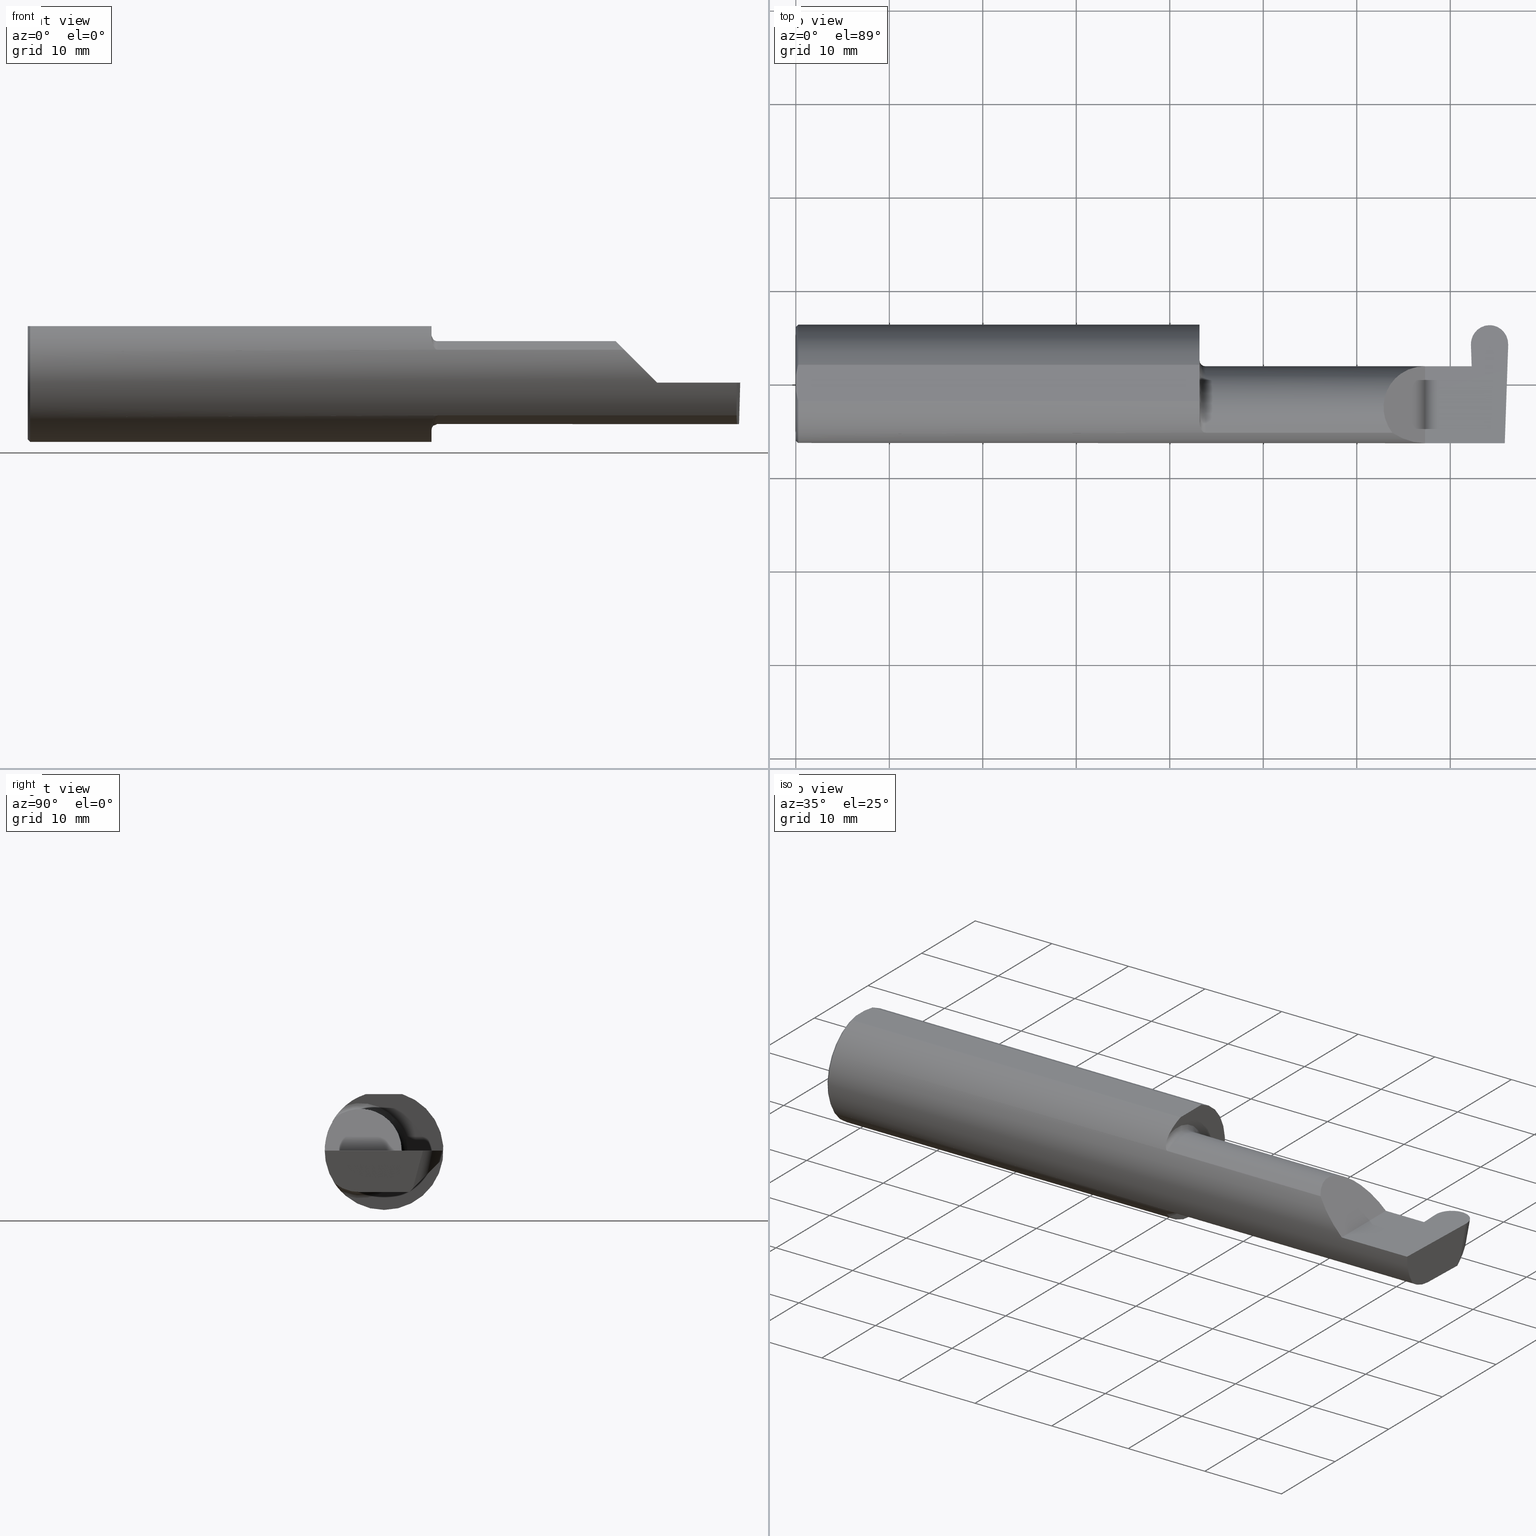
[diagram: canonical four-view strip — front | top / right | iso, engineering-drawing reading convention]
A machine part, canonical four-view strip (front | top / right | iso — engineering-drawing reading convention). The complete STEP part file that produces these views, byte-faithful:
ISO-10303-21;
HEADER;
FILE_DESCRIPTION (( 'STEP AP203' ),
    '1' );
FILE_NAME ('222494-GFR156-20.STEP',
    '2024-06-28T19:21:29',
    ( '' ),
    ( '' ),
    'SwSTEP 2.0',
    'SolidWorks 2024',
    '' );
FILE_SCHEMA (( 'CONFIG_CONTROL_DESIGN' ));
ENDSEC;

DATA;
#1 = ORIENTED_EDGE ( 'NONE', *, *, #38, .F. ) ;
#2 = DIRECTION ( 'NONE',  ( -1.000000000000000000, -0.000000000000000000, -0.000000000000000000 ) ) ;
#3 = CARTESIAN_POINT ( 'NONE',  ( 2.837280621926297819, 0.3091953186960626487, 0.02837098154789517018 ) ) ;
#4 = DIRECTION ( 'NONE',  ( 0.000000000000000000, -1.000000000000000000, 1.223176342469858124E-16 ) ) ;
#5 = ORIENTED_EDGE ( 'NONE', *, *, #217, .T. ) ;
#6 = CARTESIAN_POINT ( 'NONE',  ( 2.842784520300991158, 0.1657741035941333874, 0.000000000000000000 ) ) ;
#7 = CIRCLE ( 'NONE', #84, 0.1750000000000000167 ) ;
#8 = FACE_OUTER_BOUND ( 'NONE', #423, .T. ) ;
#9 = ORIENTED_EDGE ( 'NONE', *, *, #670, .F. ) ;
#10 = CARTESIAN_POINT ( 'NONE',  ( -0.002039370078740339320, 0.1058243371481696476, -0.1750000000000001277 ) ) ;
#11 = EDGE_CURVE ( 'NONE', #288, #451, #558, .T. ) ;
#12 = ORIENTED_EDGE ( 'NONE', *, *, #27, .T. ) ;
#13 = CARTESIAN_POINT ( 'NONE',  ( 2.650000000000000355, 0.07414999999999999369, 1.592040838891556877E-16 ) ) ;
#14 = EDGE_CURVE ( 'NONE', #132, #451, #323, .T. ) ;
#15 = VERTEX_POINT ( 'NONE', #523 ) ;
#16 = CARTESIAN_POINT ( 'NONE',  ( 1.700000000000000178, -0.1008500000000000646, 0.000000000000000000 ) ) ;
#17 = PERSON_AND_ORGANIZATION ( #489, #411 ) ;
#18 = ORIENTED_EDGE ( 'NONE', *, *, #309, .T. ) ;
#19 = CARTESIAN_POINT ( 'NONE',  ( 2.987584882537838826, -0.1008500000000000091, -0.1750000000000000722 ) ) ;
#20 = EDGE_CURVE ( 'NONE', #319, #421, #61, .T. ) ;
#21 = DIRECTION ( 'NONE',  ( 0.000000000000000000, -1.000000000000000000, 0.000000000000000000 ) ) ;
#22 = APPROVAL_ROLE ( '' ) ;
#23 = DIRECTION ( 'NONE',  ( -0.03489949670249601482, 0.9993908270190959842, -1.222058880457094148E-16 ) ) ;
#24 = VECTOR ( 'NONE', #73, 39.37007874015748854 ) ;
#25 = DIRECTION ( 'NONE',  ( 1.000000000000000000, 4.482410818444318395E-17, 0.000000000000000000 ) ) ;
#26 = EDGE_LOOP ( 'NONE', ( #128, #587, #563, #91 ) ) ;
#27 = EDGE_CURVE ( 'NONE', #94, #481, #57, .T. ) ;
#28 = CARTESIAN_POINT ( 'NONE',  ( 2.842863629214074095, 0.1635087207221616323, 0.000000000000000000 ) ) ;
#29 = CARTESIAN_POINT ( 'NONE',  ( 2.834871741199312734, 0.07407892981889410700, -0.004071607948635004408 ) ) ;
#30 = ORIENTED_EDGE ( 'NONE', *, *, #508, .T. ) ;
#31 = CARTESIAN_POINT ( 'NONE',  ( 2.997444159268687347, 0.1562581541034807064, -0.1245661830446885138 ) ) ;
#32 = LINE ( 'NONE', #535, #318 ) ;
#33 = ORIENTED_EDGE ( 'NONE', *, *, #48, .T. ) ;
#34 = AXIS2_PLACEMENT_3D ( 'NONE', #165, #108, #278 ) ;
#35 = CARTESIAN_POINT ( 'NONE',  ( 1.700000000000000178, 0.07650098038587520299, 0.2378499999999998671 ) ) ;
#36 = ORIENTED_EDGE ( 'NONE', *, *, #164, .T. ) ;
#37 = DIRECTION ( 'NONE',  ( 0.000000000000000000, -0.7071067811865435759, -0.7071067811865514585 ) ) ;
#38 = EDGE_CURVE ( 'NONE', #262, #447, #285, .T. ) ;
#39 = ORIENTED_EDGE ( 'NONE', *, *, #415, .T. ) ;
#40 = DIRECTION ( 'NONE',  ( 0.000000000000000000, 1.000000000000000000, 0.000000000000000000 ) ) ;
#41 = ORIENTED_EDGE ( 'NONE', *, *, #415, .F. ) ;
#42 = LINE ( 'NONE', #146, #485 ) ;
#43 = APPROVAL ( #545, 'UNSPECIFIED' ) ;
#44 = CARTESIAN_POINT ( 'NONE',  ( -0.002039370078740339320, 0.2471499999999999808, 0.000000000000000000 ) ) ;
#45 = ORIENTED_EDGE ( 'NONE', *, *, #468, .T. ) ;
#46 = CARTESIAN_POINT ( 'NONE',  ( 1.723329956043142763, -0.2080850024798590603, 0.1382955322595676440 ) ) ;
#47 = CARTESIAN_POINT ( 'NONE',  ( 1.700000000000000178, 0.07404339472834137181, -0.006107411922947746964 ) ) ;
#48 = EDGE_CURVE ( 'NONE', #436, #637, #271, .T. ) ;
#49 = AXIS2_PLACEMENT_3D ( 'NONE', #613, #547, #708 ) ;
#50 = CALENDAR_DATE ( 2024, 28, 6 ) ;
#51 = SECURITY_CLASSIFICATION ( '', '', #620 ) ;
#52 = CARTESIAN_POINT ( 'NONE',  ( 2.283868309999999902, -0.2080850024789289432, -0.1382955322609668858 ) ) ;
#53 = DIRECTION ( 'NONE',  ( -0.03701744261649942552, 0.7066221440565398915, 0.7066221440565477740 ) ) ;
#54 = CARTESIAN_POINT ( 'NONE',  ( 0.000000000000000000, 0.000000000000000000, 0.000000000000000000 ) ) ;
#55 = CC_DESIGN_DATE_AND_TIME_ASSIGNMENT ( #138, #78, ( #51 ) ) ;
#56 = CARTESIAN_POINT ( 'NONE',  ( 1.725000000000000089, -0.1008500000000000646, 0.000000000000000000 ) ) ;
#57 = LINE ( 'NONE', #224, #81 ) ;
#58 = PERSON_AND_ORGANIZATION ( #489, #411 ) ;
#59 = ORIENTED_EDGE ( 'NONE', *, *, #474, .T. ) ;
#60 = CARTESIAN_POINT ( 'NONE',  ( 0.009999999999999856226, 0.07650098038587520299, 0.2378499999999998671 ) ) ;
#61 = LINE ( 'NONE', #552, #157 ) ;
#62 = DIRECTION ( 'NONE',  ( -4.482410818444318395E-17, 1.000000000000000000, 0.000000000000000000 ) ) ;
#63 = ORIENTED_EDGE ( 'NONE', *, *, #181, .T. ) ;
#64 = LOCAL_TIME ( 12, 21, 29.00000000000000000, #70 ) ;
#65 = VERTEX_POINT ( 'NONE', #434 ) ;
#66 = CARTESIAN_POINT ( 'NONE',  ( 2.921368310000000967, 0.2370242055618500543, -0.03778639420637353030 ) ) ;
#67 =( BOUNDED_CURVE ( )  B_SPLINE_CURVE ( 3, ( #694, #270, #314, #428 ),
 .UNSPECIFIED., .F., .F. ) 
 B_SPLINE_CURVE_WITH_KNOTS ( ( 4, 4 ),
 ( 1.556556287886218692, 3.148123430193717986 ),
 .UNSPECIFIED. ) 
 CURVE ( )  GEOMETRIC_REPRESENTATION_ITEM ( )  RATIONAL_B_SPLINE_CURVE ( ( 1.000000000000000000, 0.7998167921253449553, 0.7998167921253449553, 1.000000000000000000 ) ) 
 REPRESENTATION_ITEM ( '' )  );
#68 = VERTEX_POINT ( 'NONE', #380 ) ;
#69 = CARTESIAN_POINT ( 'NONE',  ( 3.501298404146671484, 0.2498499999999998500, 0.2378499999999998671 ) ) ;
#70 = COORDINATED_UNIVERSAL_TIME_OFFSET ( 8, 0, .BEHIND. ) ;
#71 = ADVANCED_FACE ( 'NONE', ( #430 ), #495, .F. ) ;
#72 = ORIENTED_EDGE ( 'NONE', *, *, #663, .T. ) ;
#73 = DIRECTION ( 'NONE',  ( -0.02590004391968272687, -0.2587322210431824421, -0.9656017944882974158 ) ) ;
#74 = CIRCLE ( 'NONE', #34, 0.2398500000000001742 ) ;
#75 = AXIS2_PLACEMENT_3D ( 'NONE', #316, #417, #195 ) ;
#76 = FACE_OUTER_BOUND ( 'NONE', #144, .T. ) ;
#77 = MANIFOLD_SOLID_BREP ( 'Radii', #137 ) ;
#78 = DATE_TIME_ROLE ( 'classification_date' ) ;
#79 = CARTESIAN_POINT ( 'NONE',  ( 2.511704467739032332, -0.2080850024789289432, 0.1382955322609668858 ) ) ;
#80 = DIRECTION ( 'NONE',  ( -0.01806954526206912617, 0.01744955702544859211, 0.9996844524616943506 ) ) ;
#81 = VECTOR ( 'NONE', #599, 39.37007874015748143 ) ;
#82 = EDGE_CURVE ( 'NONE', #308, #288, #172, .T. ) ;
#83 = ORIENTED_EDGE ( 'NONE', *, *, #82, .T. ) ;
#84 = AXIS2_PLACEMENT_3D ( 'NONE', #56, #107, #674 ) ;
#85 = VECTOR ( 'NONE', #261, 39.37007874015748854 ) ;
#86 = CARTESIAN_POINT ( 'NONE',  ( 2.920795643315781120, 0.2471499999999999808, 0.000000000000000000 ) ) ;
#87 = PLANE ( 'NONE',  #272 ) ;
#88 = ORIENTED_EDGE ( 'NONE', *, *, #466, .T. ) ;
#89 = DIRECTION ( 'NONE',  ( -4.482410818444318395E-17, 1.000000000000000000, 0.000000000000000000 ) ) ;
#90 = PLANE ( 'NONE',  #627 ) ;
#91 = ORIENTED_EDGE ( 'NONE', *, *, #121, .T. ) ;
#92 = CARTESIAN_POINT ( 'NONE',  ( 2.984481223124517690, -0.2080850024789288877, -0.1382955322609668858 ) ) ;
#93 = EDGE_CURVE ( 'NONE', #268, #554, #74, .T. ) ;
#94 = VERTEX_POINT ( 'NONE', #499 ) ;
#95 = CARTESIAN_POINT ( 'NONE',  ( 1.712616400345755574, -0.2024684335577102701, 0.1464246884265638371 ) ) ;
#96 = CARTESIAN_POINT ( 'NONE',  ( 2.969012533631873119, 0.2471500000000000918, 2.705682905371335382E-18 ) ) ;
#97 = VECTOR ( 'NONE', #618, 39.37007874015748143 ) ;
#98 = CARTESIAN_POINT ( 'NONE',  ( 2.984572483848591862, -0.2498499999999999610, -0.04956584089959716749 ) ) ;
#99 = ORIENTED_EDGE ( 'NONE', *, *, #217, .F. ) ;
#100 = FACE_OUTER_BOUND ( 'NONE', #234, .T. ) ;
#101 = ORIENTED_EDGE ( 'NONE', *, *, #580, .T. ) ;
#102 = CARTESIAN_POINT ( 'NONE',  ( 0.000000000000000000, 0.2498499999999998500, 0.2378499999999998671 ) ) ;
#103 = DIRECTION ( 'NONE',  ( -1.000000000000000000, -0.000000000000000000, -0.000000000000000000 ) ) ;
#104 = CARTESIAN_POINT ( 'NONE',  ( 0.000000000000000000, -0.03090954545120560767, 0.2378499999999998671 ) ) ;
#105 = PERSON_AND_ORGANIZATION_ROLE ( 'design_owner' ) ;
#106 = ORIENTED_EDGE ( 'NONE', *, *, #164, .F. ) ;
#107 = DIRECTION ( 'NONE',  ( -1.000000000000000000, -4.482410818444318395E-17, -0.000000000000000000 ) ) ;
#108 = DIRECTION ( 'NONE',  ( -1.000000000000000000, -0.000000000000000000, -0.000000000000000000 ) ) ;
#109 = ADVANCED_FACE ( 'NONE', ( #8 ), #487, .F. ) ;
#110 = VECTOR ( 'NONE', #490, 39.37007874015748143 ) ;
#111 = ORIENTED_EDGE ( 'NONE', *, *, #372, .F. ) ;
#112 = CARTESIAN_POINT ( 'NONE',  ( 0.009999999999999856226, 0.000000000000000000, 0.000000000000000000 ) ) ;
#113 = CARTESIAN_POINT ( 'NONE',  ( 1.714302603425052141, -0.2041009206016212996, -0.1441313430770040094 ) ) ;
#114 = B_SPLINE_CURVE_WITH_KNOTS ( 'NONE', 3,
 ( #424, #198, #373, #582 ),
 .UNSPECIFIED., .F., .F.,
 ( 4, 4 ),
 ( 0.01593449416844770414, 0.01712021724825603733 ),
 .UNSPECIFIED. ) ;
#115 = PERSON_AND_ORGANIZATION ( #489, #411 ) ;
#116 = ORIENTED_EDGE ( 'NONE', *, *, #82, .F. ) ;
#117 = LINE ( 'NONE', #659, #399 ) ;
#118 = CARTESIAN_POINT ( 'NONE',  ( 1.723318040126430084, -0.2080850024789289987, -0.1382955322609667193 ) ) ;
#119 = CARTESIAN_POINT ( 'NONE',  ( 2.999952099699010333, 0.1657741035941333874, 0.000000000000000000 ) ) ;
#120 = VERTEX_POINT ( 'NONE', #704 ) ;
#121 = EDGE_CURVE ( 'NONE', #351, #554, #412, .T. ) ;
#122 = LINE ( 'NONE', #52, #342 ) ;
#123 =( BOUNDED_CURVE ( )  B_SPLINE_CURVE ( 3, ( #581, #422, #651, #145 ),
 .UNSPECIFIED., .F., .F. ) 
 B_SPLINE_CURVE_WITH_KNOTS ( ( 4, 4 ),
 ( 3.159045946109733993, 4.694935687864651541 ),
 .UNSPECIFIED. ) 
 CURVE ( )  GEOMETRIC_REPRESENTATION_ITEM ( )  RATIONAL_B_SPLINE_CURVE ( ( 1.000000000000000000, 0.8128932002257888145, 0.8128932002257888145, 1.000000000000000000 ) ) 
 REPRESENTATION_ITEM ( '' )  );
#124 = CARTESIAN_POINT ( 'NONE',  ( 2.919979534775631880, 0.1517307160382624642, -0.05280890631227902476 ) ) ;
#125 = ORIENTED_EDGE ( 'NONE', *, *, #284, .T. ) ;
#126 = CARTESIAN_POINT ( 'NONE',  ( 2.600434159100402987, -0.2498499999999999610, 0.04956584089959698708 ) ) ;
#127 = AXIS2_PLACEMENT_3D ( 'NONE', #585, #361, #153 ) ;
#128 = ORIENTED_EDGE ( 'NONE', *, *, #93, .F. ) ;
#129 = CARTESIAN_POINT ( 'NONE',  ( 1.700000000000000178, -0.1008500000000000646, 0.000000000000000000 ) ) ;
#130 = EDGE_CURVE ( 'NONE', #407, #532, #549, .T. ) ;
#131 = CALENDAR_DATE ( 2024, 28, 6 ) ;
#132 = VERTEX_POINT ( 'NONE', #491 ) ;
#133 = DIRECTION ( 'NONE',  ( 0.000000000000000000, 0.000000000000000000, 1.000000000000000000 ) ) ;
#134 = B_SPLINE_CURVE_WITH_KNOTS ( 'NONE', 3,
 ( #311, #29, #692, #645 ),
 .UNSPECIFIED., .F., .F.,
 ( 4, 4 ),
 ( 0.000000000000000000, 1.000000000000000000 ),
 .UNSPECIFIED. ) ;
#135 = EDGE_LOOP ( 'NONE', ( #176, #183, #471, #59 ) ) ;
#136 = CARTESIAN_POINT ( 'NONE',  ( 1.700000000000000178, 0.000000000000000000, 0.000000000000000000 ) ) ;
#137 = CLOSED_SHELL ( 'NONE', ( #598, #199, #245, #605, #279, #457, #331, #629, #426, #519, #555, #676, #238, #193, #109, #488, #71, #702, #322 ) ) ;
#138 = DATE_AND_TIME ( #294, #300 ) ;
#139 = CARTESIAN_POINT ( 'NONE',  ( 2.995574489715794542, 0.1205682248496117576, -0.1602561122985578790 ) ) ;
#140 = CARTESIAN_POINT ( 'NONE',  ( 2.921940976684220370, 0.2471499999999999808, 0.000000000000000000 ) ) ;
#141 = EDGE_CURVE ( 'NONE', #65, #432, #247, .T. ) ;
#142 = LINE ( 'NONE', #363, #398 ) ;
#143 = VECTOR ( 'NONE', #23, 39.37007874015748143 ) ;
#144 = EDGE_LOOP ( 'NONE', ( #5, #483, #546, #680 ) ) ;
#145 = CARTESIAN_POINT ( 'NONE',  ( 2.846094497492901887, 0.07404339472834124691, -0.006107411922953763853 ) ) ;
#146 = CARTESIAN_POINT ( 'NONE',  ( 0.000000000000000000, 0.000000000000000000, -0.2398500000000001742 ) ) ;
#147 = VERTEX_POINT ( 'NONE', #557 ) ;
#148 = EDGE_CURVE ( 'NONE', #532, #15, #67, .T. ) ;
#149 = FACE_OUTER_BOUND ( 'NONE', #509, .T. ) ;
#150 = CARTESIAN_POINT ( 'NONE',  ( 1.699999999999999734, -0.1665641037263009827, 0.1863429692936360849 ) ) ;
#151 = ORIENTED_EDGE ( 'NONE', *, *, #302, .T. ) ;
#152 = EDGE_CURVE ( 'NONE', #579, #436, #201, .T. ) ;
#153 = DIRECTION ( 'NONE',  ( 0.000000000000000000, 0.000000000000000000, -1.000000000000000000 ) ) ;
#154 = ORIENTED_EDGE ( 'NONE', *, *, #707, .F. ) ;
#155 = DIRECTION ( 'NONE',  ( 0.7071067811865486830, 0.000000000000000000, -0.7071067811865462405 ) ) ;
#156 = VERTEX_POINT ( 'NONE', #205 ) ;
#157 = VECTOR ( 'NONE', #281, 39.37007874015748143 ) ;
#158 = CC_DESIGN_APPROVAL ( #378, ( #51 ) ) ;
#159 = FACE_OUTER_BOUND ( 'NONE', #367, .T. ) ;
#160 = CARTESIAN_POINT ( 'NONE',  ( 2.845984104502489398, 0.07414999999999977165, 0.000000000000000000 ) ) ;
#161 = CARTESIAN_POINT ( 'NONE',  ( 1.725000000000000089, -0.2080850024789290265, -0.1382955322609667748 ) ) ;
#162 = ORIENTED_EDGE ( 'NONE', *, *, #14, .F. ) ;
#163 = DIRECTION ( 'NONE',  ( -0.03489949670249602176, 0.9993908270190959842, -0.000000000000000000 ) ) ;
#164 = EDGE_CURVE ( 'NONE', #683, #312, #114, .T. ) ;
#165 = CARTESIAN_POINT ( 'NONE',  ( 0.000000000000000000, 0.000000000000000000, 0.000000000000000000 ) ) ;
#166 = ORIENTED_EDGE ( 'NONE', *, *, #173, .T. ) ;
#167 = LINE ( 'NONE', #394, #678 ) ;
#168 = CARTESIAN_POINT ( 'NONE',  ( 2.842784520300991158, 0.1657741035941333874, 0.000000000000000000 ) ) ;
#169 = DIRECTION ( 'NONE',  ( 0.000000000000000000, 0.000000000000000000, 1.000000000000000000 ) ) ;
#170 = AXIS2_PLACEMENT_3D ( 'NONE', #639, #368, #310 ) ;
#171 = CARTESIAN_POINT ( 'NONE',  ( 0.009999999999999856226, 0.000000000000000000, -0.2498499999999999888 ) ) ;
#172 = LINE ( 'NONE', #609, #191 ) ;
#173 = EDGE_CURVE ( 'NONE', #262, #120, #255, .T. ) ;
#174 = ORIENTED_EDGE ( 'NONE', *, *, #93, .T. ) ;
#175 = CARTESIAN_POINT ( 'NONE',  ( 2.847934510574751776, 0.1058243371481696476, -0.1750000000000000722 ) ) ;
#176 = ORIENTED_EDGE ( 'NONE', *, *, #408, .T. ) ;
#177 = DIRECTION ( 'NONE',  ( 0.02590004391968283443, -0.2587322210431824421, -0.9656017944882975268 ) ) ;
#178 = ORIENTED_EDGE ( 'NONE', *, *, #580, .F. ) ;
#179 = CARTESIAN_POINT ( 'NONE',  ( 2.482823929317965028, 0.07414999999999999369, 0.1671760706820338838 ) ) ;
#180 = VECTOR ( 'NONE', #62, 39.37007874015748143 ) ;
#181 = EDGE_CURVE ( 'NONE', #147, #564, #32, .T. ) ;
#182 = APPROVAL_ROLE ( '' ) ;
#183 = ORIENTED_EDGE ( 'NONE', *, *, #685, .F. ) ;
#184 = CARTESIAN_POINT ( 'NONE',  ( 2.409263745716142768, -0.07597241004310682777, 0.2407362542838554220 ) ) ;
#185 = CC_DESIGN_PERSON_AND_ORGANIZATION_ASSIGNMENT ( #350, #682, ( #51 ) ) ;
#186 = DIMENSIONAL_EXPONENTS ( 1.000000000000000000, 0.000000000000000000, 0.000000000000000000, 0.000000000000000000, 0.000000000000000000, 0.000000000000000000, 0.000000000000000000 ) ;
#187 = PRODUCT_DEFINITION_SHAPE ( 'NONE', 'NONE',  #335 ) ;
#188 = ORIENTED_EDGE ( 'NONE', *, *, #130, .T. ) ;
#189 = PLANE ( 'NONE',  #257 ) ;
#190 = DIRECTION ( 'NONE',  ( 4.482410818444318395E-17, -1.000000000000000000, 0.000000000000000000 ) ) ;
#191 = VECTOR ( 'NONE', #594, 39.37007874015747433 ) ;
#192 = VECTOR ( 'NONE', #381, 39.37007874015748854 ) ;
#193 = ADVANCED_FACE ( 'NONE', ( #473 ), #526, .F. ) ;
#194 = CARTESIAN_POINT ( 'NONE',  ( 1.725000000000000089, -0.1008500000000000646, 0.000000000000000000 ) ) ;
#195 = DIRECTION ( 'NONE',  ( 0.000000000000000000, 0.000000000000000000, -1.000000000000000000 ) ) ;
#196 = EDGE_LOOP ( 'NONE', ( #188, #592, #30, #671, #111 ) ) ;
#197 = CARTESIAN_POINT ( 'NONE',  ( 1.700000000000000178, 0.000000000000000000, 0.000000000000000000 ) ) ;
#198 = CARTESIAN_POINT ( 'NONE',  ( 0.002005502345409059580, 0.04647171987093979412, 0.2378499999999998671 ) ) ;
#199 = ADVANCED_FACE ( 'NONE', ( #654 ), #87, .F. ) ;
#200 = ORIENTED_EDGE ( 'NONE', *, *, #214, .F. ) ;
#201 = LINE ( 'NONE', #531, #653 ) ;
#202 = ORIENTED_EDGE ( 'NONE', *, *, #529, .T. ) ;
#203 = DIRECTION ( 'NONE',  ( 0.000000000000000000, 0.000000000000000000, -1.000000000000000000 ) ) ;
#204 = ORIENTED_EDGE ( 'NONE', *, *, #707, .T. ) ;
#205 = CARTESIAN_POINT ( 'NONE',  ( 1.700000000000000178, -0.1616050818046604609, 0.1905487340154980169 ) ) ;
#206 = VERTEX_POINT ( 'NONE', #478 ) ;
#207 =( BOUNDED_CURVE ( )  B_SPLINE_CURVE ( 3, ( #313, #254, #98, #528 ),
 .UNSPECIFIED., .F., .F. ) 
 B_SPLINE_CURVE_WITH_KNOTS ( ( 4, 4 ),
 ( 6.160376845738947615, 6.746954780470606039 ),
 .UNSPECIFIED. ) 
 CURVE ( )  GEOMETRIC_REPRESENTATION_ITEM ( )  RATIONAL_B_SPLINE_CURVE ( ( 1.000000000000000000, 0.9715321379117538569, 0.9715321379117538569, 1.000000000000000000 ) ) 
 REPRESENTATION_ITEM ( '' )  );
#208 = DIRECTION ( 'NONE',  ( 1.000000000000000000, 4.482410818444318395E-17, 0.000000000000000000 ) ) ;
#209 = CYLINDRICAL_SURFACE ( 'NONE', #429, 0.2498499999999999888 ) ;
#210 = CARTESIAN_POINT ( 'NONE',  ( 0.001983148254845701515, -0.04629825796642599717, 0.2378499999999998671 ) ) ;
#211 = AXIS2_PLACEMENT_3D ( 'NONE', #168, #660, #229 ) ;
#212 = AXIS2_PLACEMENT_3D ( 'NONE', #129, #402, #677 ) ;
#213 = DATE_AND_TIME ( #610, #431 ) ;
#214 = EDGE_CURVE ( 'NONE', #447, #421, #134, .T. ) ;
#215 =( BOUNDED_CURVE ( )  B_SPLINE_CURVE ( 3, ( #686, #630, #305, #139 ),
 .UNSPECIFIED., .F., .T. ) 
 B_SPLINE_CURVE_WITH_KNOTS ( ( 4, 4 ),
 ( 3.135061876985868246, 4.726629019293367762 ),
 .UNSPECIFIED. ) 
 CURVE ( )  GEOMETRIC_REPRESENTATION_ITEM ( )  RATIONAL_B_SPLINE_CURVE ( ( 1.000000000000000000, 0.7998167921253448442, 0.7998167921253448442, 1.000000000000000000 ) ) 
 REPRESENTATION_ITEM ( '' )  );
#216 = DIRECTION ( 'NONE',  ( -1.000000000000000000, -0.000000000000000000, -0.000000000000000000 ) ) ;
#217 = EDGE_CURVE ( 'NONE', #156, #94, #522, .T. ) ;
#218 = CARTESIAN_POINT ( 'NONE',  ( 0.000000000000000000, -0.07650098038587520299, 0.2378499999999998671 ) ) ;
#219 = DIRECTION ( 'NONE',  ( 0.9998367324388628408, 0.0003153570480505199394, 0.01806679318280377325 ) ) ;
#220 = DATE_AND_TIME ( #50, #345 ) ;
#221 = ORIENTED_EDGE ( 'NONE', *, *, #468, .F. ) ;
#222 = FACE_OUTER_BOUND ( 'NONE', #661, .T. ) ;
#223 = EDGE_CURVE ( 'NONE', #268, #340, #42, .T. ) ;
#224 = CARTESIAN_POINT ( 'NONE',  ( 2.283868309999999902, -0.2080850024789289432, 0.1382955322609668858 ) ) ;
#225 = AXIS2_PLACEMENT_3D ( 'NONE', #194, #515, #190 ) ;
#226 = ORIENTED_EDGE ( 'NONE', *, *, #403, .T. ) ;
#227 = AXIS2_PLACEMENT_3D ( 'NONE', #480, #208, #89 ) ;
#228 = CARTESIAN_POINT ( 'NONE',  ( 0.009999999999999856226, -0.07650098038587520299, 0.2378499999999998671 ) ) ;
#229 = DIRECTION ( 'NONE',  ( -0.03489949670249601482, 0.9993908270190959842, 0.000000000000000000 ) ) ;
#230 = DIRECTION ( 'NONE',  ( 1.000000000000000000, 0.000000000000000000, 0.000000000000000000 ) ) ;
#231 = ORIENTED_EDGE ( 'NONE', *, *, #48, .F. ) ;
#232 = DESIGN_CONTEXT ( 'detailed design', #623, 'design' ) ;
#233 = CARTESIAN_POINT ( 'NONE',  ( 2.650000000000000355, -0.2498499999999999610, 4.286263797015729199E-17 ) ) ;
#234 = EDGE_LOOP ( 'NONE', ( #348, #370, #477 ) ) ;
#235 = CYLINDRICAL_SURFACE ( 'NONE', #212, 0.1750000000000000444 ) ;
#236 = ORIENTED_EDGE ( 'NONE', *, *, #450, .T. ) ;
#237 = AXIS2_PLACEMENT_3D ( 'NONE', #16, #633, #21 ) ;
#238 = ADVANCED_FACE ( 'NONE', ( #100 ), #90, .F. ) ;
#239 = CARTESIAN_POINT ( 'NONE',  ( 0.000000000000000000, -0.03090954545120560767, 0.2378499999999998671 ) ) ;
#240 = EDGE_LOOP ( 'NONE', ( #505, #83, #204, #425, #539, #344 ) ) ;
#241 = LINE ( 'NONE', #626, #24 ) ;
#242 = APPLICATION_CONTEXT ( 'configuration controlled 3d designs of mechanical parts and assemblies' ) ;
#243 = PERSON_AND_ORGANIZATION ( #489, #411 ) ;
#244 = CARTESIAN_POINT ( 'NONE',  ( 2.855818017474425208, -0.1199297631885132970, -0.1750000000000000722 ) ) ;
#245 = ADVANCED_FACE ( 'NONE', ( #635 ), #209, .T. ) ;
#246 = PRODUCT_RELATED_PRODUCT_CATEGORY ( 'detail', '', ( #640 ) ) ;
#247 = B_SPLINE_CURVE_WITH_KNOTS ( 'NONE', 3,
 ( #161, #118, #709, #388, #604, #113, #326, #441, #333, #669, #543, #338 ),
 .UNSPECIFIED., .F., .F.,
 ( 4, 2, 2, 2, 2, 4 ),
 ( 1.964491429041408350E-07, 0.0001260981470478410511, 0.0002519998449527779223, 0.0005038032407626377327, 0.001007410032382356595, 0.002014623615621789331 ),
 .UNSPECIFIED. ) ;
#248 = DIRECTION ( 'NONE',  ( 1.000000000000000000, 0.000000000000000000, 0.000000000000000000 ) ) ;
#249 = ORIENTED_EDGE ( 'NONE', *, *, #372, .T. ) ;
#250 = PLANE ( 'NONE',  #453 ) ;
#251 = EDGE_CURVE ( 'NONE', #637, #253, #142, .T. ) ;
#252 = CARTESIAN_POINT ( 'NONE',  ( 1.700000000000000178, -0.1616050818046604609, 0.1905487340154980169 ) ) ;
#253 = VERTEX_POINT ( 'NONE', #366 ) ;
#254 = CARTESIAN_POINT ( 'NONE',  ( 2.984244149176539018, -0.2355204011147991328, -0.09701513151466779894 ) ) ;
#255 = LINE ( 'NONE', #379, #256 ) ;
#256 = VECTOR ( 'NONE', #542, 39.37007874015748143 ) ;
#257 = AXIS2_PLACEMENT_3D ( 'NONE', #356, #689, #567 ) ;
#258 = DIRECTION ( 'NONE',  ( -0.000000000000000000, 1.000000000000000000, -0.000000000000000000 ) ) ;
#259 = DIRECTION ( 'NONE',  ( 0.000000000000000000, -0.01745240643728358451, -0.9998476951563912696 ) ) ;
#260 = EDGE_LOOP ( 'NONE', ( #550, #315, #497, #88 ) ) ;
#261 = DIRECTION ( 'NONE',  ( -0.03701744261649914797, -0.7066221440565398915, -0.7066221440565477740 ) ) ;
#262 = VERTEX_POINT ( 'NONE', #341 ) ;
#263 =( BOUNDED_CURVE ( )  B_SPLINE_CURVE ( 3, ( #328, #383, #66, #337 ),
 .UNSPECIFIED., .F., .F. ) 
 B_SPLINE_CURVE_WITH_KNOTS ( ( 4, 4 ),
 ( 4.712388980384690562, 4.720810486712381682 ),
 .UNSPECIFIED. ) 
 CURVE ( )  GEOMETRIC_REPRESENTATION_ITEM ( )  RATIONAL_B_SPLINE_CURVE ( ( 1.000000000000000000, 0.9999940898613302043, 0.9999940898613302043, 1.000000000000000000 ) ) 
 REPRESENTATION_ITEM ( '' )  );
#264 = CARTESIAN_POINT ( 'NONE',  ( 1.721718393013768944, -0.2077830475237241181, 0.1387513848711937336 ) ) ;
#265 = ORIENTED_EDGE ( 'NONE', *, *, #670, .T. ) ;
#266 = EDGE_CURVE ( 'NONE', #340, #312, #616, .T. ) ;
#267 = PERSON_AND_ORGANIZATION_ROLE ( 'creator' ) ;
#268 = VERTEX_POINT ( 'NONE', #387 ) ;
#269 = ADVANCED_BREP_SHAPE_REPRESENTATION ( '222494-GFR156-20', ( #77, #638 ), #320 ) ;
#270 = CARTESIAN_POINT ( 'NONE',  ( 2.843700459396050206, 0.1866477033902743665, -0.09417663375789452063 ) ) ;
#271 = LINE ( 'NONE', #385, #568 ) ;
#272 = AXIS2_PLACEMENT_3D ( 'NONE', #160, #420, #259 ) ;
#273 = LOCAL_TIME ( 12, 21, 29.00000000000000000, #301 ) ;
#274 = APPROVAL ( #679, 'UNSPECIFIED' ) ;
#275 = LENGTH_MEASURE_WITH_UNIT ( LENGTH_MEASURE( 0.02539999999999999897 ), #339 );
#276 = VERTEX_POINT ( 'NONE', #283 ) ;
#277 = LINE ( 'NONE', #218, #110 ) ;
#278 = DIRECTION ( 'NONE',  ( 0.000000000000000000, 0.000000000000000000, -1.000000000000000000 ) ) ;
#279 = ADVANCED_FACE ( 'NONE', ( #506 ), #597, .F. ) ;
#280 = DIRECTION ( 'NONE',  ( -1.000000000000000000, 0.000000000000000000, 1.224646799147351975E-16 ) ) ;
#281 = DIRECTION ( 'NONE',  ( 1.000000000000000000, 4.482410818444318395E-17, 0.000000000000000000 ) ) ;
#282 = ORIENTED_EDGE ( 'NONE', *, *, #396, .F. ) ;
#283 = CARTESIAN_POINT ( 'NONE',  ( 1.700000000000000178, -0.07650098038587527238, 0.2378499999999998671 ) ) ;
#284 = EDGE_CURVE ( 'NONE', #683, #268, #589, .T. ) ;
#285 = LINE ( 'NONE', #47, #520 ) ;
#286 = AXIS2_PLACEMENT_3D ( 'NONE', #503, #2, #601 ) ;
#287 =( NAMED_UNIT ( * ) SI_UNIT ( $, .STERADIAN. ) SOLID_ANGLE_UNIT ( ) );
#288 = VERTEX_POINT ( 'NONE', #494 ) ;
#289 = CC_DESIGN_APPROVAL ( #43, ( #335 ) ) ;
#290 = DIRECTION ( 'NONE',  ( -1.224646799147351975E-16, 0.000000000000000000, -1.000000000000000000 ) ) ;
#291 = VERTEX_POINT ( 'NONE', #448 ) ;
#292 = DIRECTION ( 'NONE',  ( 0.000000000000000000, 0.000000000000000000, -1.000000000000000000 ) ) ;
#293 =( BOUNDED_CURVE ( )  B_SPLINE_CURVE ( 3, ( #92, #414, #376, #533 ),
 .UNSPECIFIED., .F., .F. ) 
 B_SPLINE_CURVE_WITH_KNOTS ( ( 4, 4 ),
 ( 0.4474640105399725343, 1.107026853503876973 ),
 .UNSPECIFIED. ) 
 CURVE ( )  GEOMETRIC_REPRESENTATION_ITEM ( )  RATIONAL_B_SPLINE_CURVE ( ( 1.000000000000000000, 0.9640754331822831702, 0.9640754331822831702, 1.000000000000000000 ) ) 
 REPRESENTATION_ITEM ( '' )  );
#294 = CALENDAR_DATE ( 2024, 28, 6 ) ;
#295 = EDGE_LOOP ( 'NONE', ( #162, #265, #467, #297, #354, #374, #377, #154, #479 ) ) ;
#296 = DIRECTION ( 'NONE',  ( -0.02590004391968283443, 0.2587322210431824421, 0.9656017944882975268 ) ) ;
#297 = ORIENTED_EDGE ( 'NONE', *, *, #466, .F. ) ;
#298 = VECTOR ( 'NONE', #163, 39.37007874015748143 ) ;
#299 = DIRECTION ( 'NONE',  ( 1.000000000000000000, 0.000000000000000000, -0.000000000000000000 ) ) ;
#300 = LOCAL_TIME ( 12, 21, 29.00000000000000000, #572 ) ;
#301 = COORDINATED_UNIVERSAL_TIME_OFFSET ( 8, 0, .BEHIND. ) ;
#302 = EDGE_CURVE ( 'NONE', #68, #532, #167, .T. ) ;
#303 = CARTESIAN_POINT ( 'NONE',  ( 2.650000000000000355, 0.07414999999999999369, 1.592040838891556877E-16 ) ) ;
#304 = CC_DESIGN_PERSON_AND_ORGANIZATION_ASSIGNMENT ( #496, #105, ( #640 ) ) ;
#305 = CARTESIAN_POINT ( 'NONE',  ( 2.999036160603951728, 0.1866477033902743943, -0.09417663375789452063 ) ) ;
#306 = TOROIDAL_SURFACE ( 'NONE', #225, 0.1999999999999999556, 0.02499999999999993894 ) ;
#307 = CC_DESIGN_SECURITY_CLASSIFICATION ( #51, ( #688 ) ) ;
#308 = VERTEX_POINT ( 'NONE', #556 ) ;
#309 = EDGE_CURVE ( 'NONE', #291, #15, #263, .T. ) ;
#310 = DIRECTION ( 'NONE',  ( -0.7071067811865511255, 0.000000000000000000, 0.7071067811865439090 ) ) ;
#311 = CARTESIAN_POINT ( 'NONE',  ( 2.834836206108759527, 0.07404339472834127467, -0.006107411922952502709 ) ) ;
#312 = VERTEX_POINT ( 'NONE', #60 ) ;
#313 = CARTESIAN_POINT ( 'NONE',  ( 2.984481223124517690, -0.2080850024789288877, -0.1382955322609668858 ) ) ;
#314 = CARTESIAN_POINT ( 'NONE',  ( 2.874626783376907468, 0.2342636810864597019, -0.04656065606170858850 ) ) ;
#315 = ORIENTED_EDGE ( 'NONE', *, *, #38, .T. ) ;
#316 = CARTESIAN_POINT ( 'NONE',  ( 0.000000000000000000, 0.000000000000000000, 0.000000000000000000 ) ) ;
#317 = CARTESIAN_POINT ( 'NONE',  ( 1.718876997637615034, -0.2068363917296600352, 0.1401586554522230021 ) ) ;
#318 = VECTOR ( 'NONE', #103, 39.37007874015748143 ) ;
#319 = VERTEX_POINT ( 'NONE', #13 ) ;
#320 =( GEOMETRIC_REPRESENTATION_CONTEXT ( 3 ) GLOBAL_UNCERTAINTY_ASSIGNED_CONTEXT ( ( #612 ) ) GLOBAL_UNIT_ASSIGNED_CONTEXT ( ( #435, #600, #287 ) ) REPRESENTATION_CONTEXT ( 'NONE', 'WORKASPACE' ) );
#321 = DIRECTION ( 'NONE',  ( -0.03489949670249561930, -0.9993908270190959842, 1.222058880457094148E-16 ) ) ;
#322 = ADVANCED_FACE ( 'NONE', ( #222 ), #440, .T. ) ;
#323 = LINE ( 'NONE', #44, #472 ) ;
#324 = CARTESIAN_POINT ( 'NONE',  ( 2.650000000000000355, -0.2498499999999999610, 4.286263797015729199E-17 ) ) ;
#325 = CARTESIAN_POINT ( 'NONE',  ( 1.717647060162628136, -0.2062109266231182125, 0.1410799729252290580 ) ) ;
#326 = CARTESIAN_POINT ( 'NONE',  ( 1.712579853086619419, -0.2024300470081734915, -0.1464774911482685238 ) ) ;
#327 = APPLICATION_PROTOCOL_DEFINITION ( 'international standard', 'config_control_design', 1994, #623 ) ;
#328 = CARTESIAN_POINT ( 'NONE',  ( 2.921368310000001411, 0.2414292636342587894, -0.02135007877365307713 ) ) ;
#329 = CARTESIAN_POINT ( 'NONE',  ( 0.009999999999999856226, -0.07650098038587520299, 0.2378499999999998671 ) ) ;
#330 = AXIS2_PLACEMENT_3D ( 'NONE', #608, #290, #280 ) ;
#331 = ADVANCED_FACE ( 'NONE', ( #397 ), #498, .F. ) ;
#332 = DIRECTION ( 'NONE',  ( 0.000000000000000000, 0.000000000000000000, -1.000000000000000000 ) ) ;
#333 = CARTESIAN_POINT ( 'NONE',  ( 1.706147634408388569, -0.1932733126899461584, -0.1584637047788197695 ) ) ;
#334 = CARTESIAN_POINT ( 'NONE',  ( 0.000000000000000000, 0.03090954545120574992, 0.2378499999999998671 ) ) ;
#335 = PRODUCT_DEFINITION ( 'UNKNOWN', '', #688, #232 ) ;
#336 = EDGE_LOOP ( 'NONE', ( #116, #389, #673, #386, #583 ) ) ;
#337 = CARTESIAN_POINT ( 'NONE',  ( 2.921368310000000967, 0.2348204004542366052, -0.04600393669393169210 ) ) ;
#338 = CARTESIAN_POINT ( 'NONE',  ( 1.700000000000000178, -0.1616050818046604609, -0.1905487340154980169 ) ) ;
#339 =( LENGTH_UNIT ( ) NAMED_UNIT ( * ) SI_UNIT ( $, .METRE. ) );
#340 = VERTEX_POINT ( 'NONE', #171 ) ;
#341 = CARTESIAN_POINT ( 'NONE',  ( 2.846094497492901887, 0.07404339472834124691, -0.006107411922953763853 ) ) ;
#342 = VECTOR ( 'NONE', #672, 39.37007874015748143 ) ;
#343 = PERSON_AND_ORGANIZATION ( #489, #411 ) ;
#344 = ORIENTED_EDGE ( 'NONE', *, *, #152, .F. ) ;
#345 = LOCAL_TIME ( 12, 21, 29.00000000000000000, #606 ) ;
#346 = DIRECTION ( 'NONE',  ( 1.000000000000000000, 0.000000000000000000, 0.000000000000000000 ) ) ;
#347 = EDGE_CURVE ( 'NONE', #564, #319, #117, .T. ) ;
#348 = ORIENTED_EDGE ( 'NONE', *, *, #445, .T. ) ;
#349 = CARTESIAN_POINT ( 'NONE',  ( 2.847162130284206061, 0.1205682248496117298, -0.1602561122985578790 ) ) ;
#350 = PERSON_AND_ORGANIZATION ( #489, #411 ) ;
#351 = VERTEX_POINT ( 'NONE', #228 ) ;
#352 = CARTESIAN_POINT ( 'NONE',  ( 2.845984104502489398, 0.07414999999999977165, 0.000000000000000000 ) ) ;
#353 = EDGE_CURVE ( 'NONE', #120, #68, #551, .T. ) ;
#354 = ORIENTED_EDGE ( 'NONE', *, *, #20, .F. ) ;
#355 = AXIS2_PLACEMENT_3D ( 'NONE', #136, #517, #575 ) ;
#356 = CARTESIAN_POINT ( 'NONE',  ( 2.999952099699010333, 0.1657741035941333874, 0.000000000000000000 ) ) ;
#357 = CIRCLE ( 'NONE', #442, 0.2498499999999999888 ) ;
#358 = APPROVAL_STATUS ( 'not_yet_approved' ) ;
#359 = PLANE ( 'NONE',  #409 ) ;
#360 = CARTESIAN_POINT ( 'NONE',  ( 2.511704467739032332, -0.2080850024789289432, 0.1382955322609668858 ) ) ;
#361 = DIRECTION ( 'NONE',  ( 1.000000000000000000, 0.000000000000000000, 0.000000000000000000 ) ) ;
#362 = VECTOR ( 'NONE', #80, 39.37007874015748143 ) ;
#363 = CARTESIAN_POINT ( 'NONE',  ( 2.849201561102993718, -0.1010244175776143227, -0.1750000000000000722 ) ) ;
#364 = EDGE_CURVE ( 'NONE', #94, #65, #7, .T. ) ;
#365 = ORIENTED_EDGE ( 'NONE', *, *, #652, .F. ) ;
#366 = CARTESIAN_POINT ( 'NONE',  ( 2.849147273053401097, 0.07109536363756167876, -0.1750000000000000722 ) ) ;
#367 = EDGE_LOOP ( 'NONE', ( #419, #650, #560 ) ) ;
#368 = DIRECTION ( 'NONE',  ( -0.7071067811865439090, 0.000000000000000000, -0.7071067811865511255 ) ) ;
#369 = CARTESIAN_POINT ( 'NONE',  ( 1.702968662030528879, -0.1849684355203377595, 0.1680843977756267815 ) ) ;
#370 = ORIENTED_EDGE ( 'NONE', *, *, #544, .T. ) ;
#371 = CARTESIAN_POINT ( 'NONE',  ( 2.873724086368128372, 0.2471500000000001473, 1.543549517755541833E-17 ) ) ;
#372 = EDGE_CURVE ( 'NONE', #407, #579, #444, .T. ) ;
#373 = CARTESIAN_POINT ( 'NONE',  ( 0.005466242398876384675, 0.06169385855649840017, 0.2378499999999998671 ) ) ;
#374 = ORIENTED_EDGE ( 'NONE', *, *, #347, .F. ) ;
#375 = APPROVAL_PERSON_ORGANIZATION ( #17, #274, #182 ) ;
#376 = CARTESIAN_POINT ( 'NONE',  ( 2.986216381845219203, -0.1400387324517230747, -0.1750000000000000999 ) ) ;
#377 = ORIENTED_EDGE ( 'NONE', *, *, #181, .F. ) ;
#378 = APPROVAL ( #358, 'UNSPECIFIED' ) ;
#379 = CARTESIAN_POINT ( 'NONE',  ( 2.845984104502489398, 0.07414999999999977165, 0.000000000000000000 ) ) ;
#380 = CARTESIAN_POINT ( 'NONE',  ( 2.842863629214074095, 0.1635087207221616323, 0.000000000000000000 ) ) ;
#381 = DIRECTION ( 'NONE',  ( -0.03489949670249561930, -0.9993908270190959842, 0.000000000000000000 ) ) ;
#382 = EDGE_LOOP ( 'NONE', ( #101, #41, #527 ) ) ;
#383 = CARTESIAN_POINT ( 'NONE',  ( 2.921368310000000967, 0.2392271729750334863, -0.02956839299675443483 ) ) ;
#384 = EDGE_CURVE ( 'NONE', #206, #65, #122, .T. ) ;
#385 = CARTESIAN_POINT ( 'NONE',  ( 3.402190948718818664, -0.1008500000000000091, -0.1750000000000000722 ) ) ;
#386 = ORIENTED_EDGE ( 'NONE', *, *, #445, .F. ) ;
#387 = CARTESIAN_POINT ( 'NONE',  ( 0.000000000000000000, 0.000000000000000000, -0.2398500000000001742 ) ) ;
#388 = CARTESIAN_POINT ( 'NONE',  ( 1.718863362722771182, -0.2068301641248771472, -0.1401678546132360259 ) ) ;
#389 = ORIENTED_EDGE ( 'NONE', *, *, #508, .F. ) ;
#390 = DIRECTION ( 'NONE',  ( 1.000000000000000000, -0.000000000000000000, -0.000000000000000000 ) ) ;
#391 = DIRECTION ( 'NONE',  ( 0.01806679408117574034, 0.000000000000000000, -0.9998367821557817559 ) ) ;
#392 = COORDINATED_UNIVERSAL_TIME_OFFSET ( 8, 0, .BEHIND. ) ;
#393 = ORIENTED_EDGE ( 'NONE', *, *, #266, .T. ) ;
#394 = CARTESIAN_POINT ( 'NONE',  ( 2.842848395417763907, 0.1636609009256532188, 0.0005679442513367187126 ) ) ;
#395 = ORIENTED_EDGE ( 'NONE', *, *, #251, .T. ) ;
#396 = EDGE_CURVE ( 'NONE', #351, #276, #277, .T. ) ;
#397 = FACE_OUTER_BOUND ( 'NONE', #493, .T. ) ;
#398 = VECTOR ( 'NONE', #641, 39.37007874015748854 ) ;
#399 = VECTOR ( 'NONE', #615, 39.37007874015748143 ) ;
#400 = PERSON_AND_ORGANIZATION_ROLE ( 'creator' ) ;
#401 = ORIENTED_EDGE ( 'NONE', *, *, #121, .F. ) ;
#402 = DIRECTION ( 'NONE',  ( -1.000000000000000000, -4.482410818444318395E-17, -0.000000000000000000 ) ) ;
#403 = EDGE_CURVE ( 'NONE', #564, #481, #562, .T. ) ;
#404 = DATE_AND_TIME ( #507, #64 ) ;
#405 = ORIENTED_EDGE ( 'NONE', *, *, #141, .F. ) ;
#406 = LINE ( 'NONE', #565, #486 ) ;
#407 = VERTEX_POINT ( 'NONE', #175 ) ;
#408 = EDGE_CURVE ( 'NONE', #432, #646, #561, .T. ) ;
#409 = AXIS2_PLACEMENT_3D ( 'NONE', #69, #133, #299 ) ;
#410 = CARTESIAN_POINT ( 'NONE',  ( 1.700000000000000178, -0.1616050818046604609, -0.1905487340154980169 ) ) ;
#411 = ORGANIZATION ( 'UNSPECIFIED', 'UNSPECIFIED', '' ) ;
#412 = B_SPLINE_CURVE_WITH_KNOTS ( 'NONE', 3,
 ( #329, #701, #210, #104 ),
 .UNSPECIFIED., .F., .F.,
 ( 4, 4 ),
 ( 0.01317593029100230795, 0.01435802289191462008 ),
 .UNSPECIFIED. ) ;
#413 = LINE ( 'NONE', #571, #362 ) ;
#414 = CARTESIAN_POINT ( 'NONE',  ( 2.985143277913549831, -0.1771157075472508113, -0.1623092683844332140 ) ) ;
#415 = EDGE_CURVE ( 'NONE', #253, #262, #413, .T. ) ;
#416 = ORIENTED_EDGE ( 'NONE', *, *, #27, .F. ) ;
#417 = DIRECTION ( 'NONE',  ( 1.000000000000000000, 0.000000000000000000, 0.000000000000000000 ) ) ;
#418 = DIRECTION ( 'NONE',  ( 0.000000000000000000, 0.000000000000000000, 1.000000000000000000 ) ) ;
#419 = ORIENTED_EDGE ( 'NONE', *, *, #529, .F. ) ;
#420 = DIRECTION ( 'NONE',  ( 0.000000000000000000, -0.9998476951563912696, 0.01745240643728358451 ) ) ;
#421 = VERTEX_POINT ( 'NONE', #456 ) ;
#422 = CARTESIAN_POINT ( 'NONE',  ( 2.849170060624870882, -0.001152430219572253686, -0.1750000000000000444 ) ) ;
#423 = EDGE_LOOP ( 'NONE', ( #607, #151, #570, #459, #39, #166 ) ) ;
#424 = CARTESIAN_POINT ( 'NONE',  ( 0.000000000000000000, 0.03090954545120574992, 0.2378499999999998671 ) ) ;
#425 = ORIENTED_EDGE ( 'NONE', *, *, #574, .F. ) ;
#426 = ADVANCED_FACE ( 'NONE', ( #76 ), #306, .F. ) ;
#427 = FACE_OUTER_BOUND ( 'NONE', #26, .T. ) ;
#428 = CARTESIAN_POINT ( 'NONE',  ( 2.921368310000000967, 0.2348204004542366052, -0.04600393669393169210 ) ) ;
#429 = AXIS2_PLACEMENT_3D ( 'NONE', #703, #216, #418 ) ;
#430 = FACE_OUTER_BOUND ( 'NONE', #382, .T. ) ;
#431 = LOCAL_TIME ( 12, 21, 29.00000000000000000, #392 ) ;
#432 = VERTEX_POINT ( 'NONE', #410 ) ;
#433 = DIRECTION ( 'NONE',  ( 1.000000000000000000, 0.000000000000000000, 0.000000000000000000 ) ) ;
#434 = CARTESIAN_POINT ( 'NONE',  ( 1.725000000000000089, -0.2080850024789290265, -0.1382955322609667748 ) ) ;
#435 =( CONVERSION_BASED_UNIT ( 'INCH', #275 ) LENGTH_UNIT ( ) NAMED_UNIT ( #186 ) );
#436 = VERTEX_POINT ( 'NONE', #19 ) ;
#437 = CARTESIAN_POINT ( 'NONE',  ( 2.552984868485332015, -0.2355204011147991883, 0.09701513151466749363 ) ) ;
#438 = DIRECTION ( 'NONE',  ( -1.000000000000000000, -4.482410818444318395E-17, -0.000000000000000000 ) ) ;
#439 = APPROVAL_DATE_TIME ( #220, #43 ) ;
#440 = CYLINDRICAL_SURFACE ( 'NONE', #49, 0.07849999999999997258 ) ;
#441 = CARTESIAN_POINT ( 'NONE',  ( 1.708176740666625282, -0.1972027065478072771, -0.1535263573771914469 ) ) ;
#442 = AXIS2_PLACEMENT_3D ( 'NONE', #197, #25, #40 ) ;
#443 = ORIENTED_EDGE ( 'NONE', *, *, #20, .T. ) ;
#444 = LINE ( 'NONE', #10, #667 ) ;
#445 = EDGE_CURVE ( 'NONE', #451, #291, #241, .T. ) ;
#446 = FACE_OUTER_BOUND ( 'NONE', #336, .T. ) ;
#447 = VERTEX_POINT ( 'NONE', #622 ) ;
#448 = CARTESIAN_POINT ( 'NONE',  ( 2.921368310000001411, 0.2414292636342587894, -0.02135007877365307713 ) ) ;
#449 = PERSON_AND_ORGANIZATION_ROLE ( 'design_supplier' ) ;
#450 = EDGE_CURVE ( 'NONE', #253, #407, #518, .T. ) ;
#451 = VERTEX_POINT ( 'NONE', #140 ) ;
#452 = CARTESIAN_POINT ( 'NONE',  ( 0.000000000000000000, 0.07650098038587520299, 0.2378499999999998671 ) ) ;
#453 = AXIS2_PLACEMENT_3D ( 'NONE', #469, #691, #4 ) ;
#454 = DATE_AND_TIME ( #131, #273 ) ;
#455 = ORIENTED_EDGE ( 'NONE', *, *, #544, .F. ) ;
#456 = CARTESIAN_POINT ( 'NONE',  ( 2.834942811380418259, 0.07414999999999977165, 0.000000000000000000 ) ) ;
#457 = ADVANCED_FACE ( 'NONE', ( #460 ), #359, .T. ) ;
#458 =( BOUNDED_CURVE ( )  B_SPLINE_CURVE ( 3, ( #79, #184, #179, #303 ),
 .UNSPECIFIED., .F., .T. ) 
 B_SPLINE_CURVE_WITH_KNOTS ( ( 4, 4 ),
 ( 5.623622464215681127, 7.853981633974482790 ),
 .UNSPECIFIED. ) 
 CURVE ( )  GEOMETRIC_REPRESENTATION_ITEM ( )  RATIONAL_B_SPLINE_CURVE ( ( 1.000000000000000000, 0.6266774836123996106, 0.6266774836123996106, 1.000000000000000000 ) ) 
 REPRESENTATION_ITEM ( '' )  );
#459 = ORIENTED_EDGE ( 'NONE', *, *, #450, .F. ) ;
#460 = FACE_OUTER_BOUND ( 'NONE', #621, .T. ) ;
#461 = PERSON_AND_ORGANIZATION ( #489, #411 ) ;
#462 = DIRECTION ( 'NONE',  ( -1.000000000000000000, -0.000000000000000000, -0.000000000000000000 ) ) ;
#463 = AXIS2_PLACEMENT_3D ( 'NONE', #666, #433, #332 ) ;
#464 = LINE ( 'NONE', #352, #97 ) ;
#465 = APPROVAL_PERSON_ORGANIZATION ( #243, #378, #22 ) ;
#466 = EDGE_CURVE ( 'NONE', #421, #120, #464, .T. ) ;
#467 = ORIENTED_EDGE ( 'NONE', *, *, #353, .F. ) ;
#468 = EDGE_CURVE ( 'NONE', #646, #312, #510, .T. ) ;
#469 = CARTESIAN_POINT ( 'NONE',  ( 3.402190948718818664, -0.1008500000000000091, -0.1750000000000000722 ) ) ;
#470 = DIRECTION ( 'NONE',  ( 0.000000000000000000, -0.2588190451025209615, -0.9659258262890682012 ) ) ;
#471 = ORIENTED_EDGE ( 'NONE', *, *, #636, .T. ) ;
#472 = VECTOR ( 'NONE', #625, 39.37007874015748143 ) ;
#473 = FACE_OUTER_BOUND ( 'NONE', #196, .T. ) ;
#474 = EDGE_CURVE ( 'NONE', #156, #432, #687, .T. ) ;
#475 = CARTESIAN_POINT ( 'NONE',  ( 2.999872990785927396, 0.1635087207221616878, 0.000000000000000000 ) ) ;
#476 = LINE ( 'NONE', #102, #668 ) ;
#477 = ORIENTED_EDGE ( 'NONE', *, *, #14, .T. ) ;
#478 = CARTESIAN_POINT ( 'NONE',  ( 2.984481223124517690, -0.2080850024789288877, -0.1382955322609668858 ) ) ;
#479 = ORIENTED_EDGE ( 'NONE', *, *, #11, .T. ) ;
#480 = CARTESIAN_POINT ( 'NONE',  ( 1.700000000000000178, 0.2498499999999998222, 0.000000000000000000 ) ) ;
#481 = VERTEX_POINT ( 'NONE', #360 ) ;
#482 = DIRECTION ( 'NONE',  ( 0.000000000000000000, -0.9659258262890682012, 0.2588190451025209615 ) ) ;
#483 = ORIENTED_EDGE ( 'NONE', *, *, #364, .T. ) ;
#484 = DIRECTION ( 'NONE',  ( 0.000000000000000000, -0.7071067811865514585, 0.7071067811865435759 ) ) ;
#485 = VECTOR ( 'NONE', #155, 39.37007874015748854 ) ;
#486 = VECTOR ( 'NONE', #296, 39.37007874015748854 ) ;
#487 = PLANE ( 'NONE',  #211 ) ;
#488 = ADVANCED_FACE ( 'NONE', ( #684 ), #189, .F. ) ;
#489 = PERSON ( 'UNSPECIFIED', 'UNSPECIFIED', 'UNSPECIFIED', ('UNSPECIFIED'), ('UNSPECIFIED'), ('UNSPECIFIED') ) ;
#490 = DIRECTION ( 'NONE',  ( 1.000000000000000000, 0.000000000000000000, 0.000000000000000000 ) ) ;
#491 = CARTESIAN_POINT ( 'NONE',  ( 2.920795643315781120, 0.2471499999999999808, 0.000000000000000000 ) ) ;
#492 = APPLICATION_PROTOCOL_DEFINITION ( 'international standard', 'config_control_design', 1994, #242 ) ;
#493 = EDGE_LOOP ( 'NONE', ( #596, #125, #174 ) ) ;
#494 = CARTESIAN_POINT ( 'NONE',  ( 2.999872990785927396, 0.1635087207221616878, 0.000000000000000000 ) ) ;
#495 = PLANE ( 'NONE',  #500 ) ;
#496 = PERSON_AND_ORGANIZATION ( #489, #411 ) ;
#497 = ORIENTED_EDGE ( 'NONE', *, *, #214, .T. ) ;
#498 = PLANE ( 'NONE',  #463 ) ;
#499 = CARTESIAN_POINT ( 'NONE',  ( 1.725000000000000089, -0.2080850024789289709, 0.1382955322609668580 ) ) ;
#500 = AXIS2_PLACEMENT_3D ( 'NONE', #656, #219, #391 ) ;
#501 = AXIS2_PLACEMENT_3D ( 'NONE', #696, #248, #203 ) ;
#502 = ORIENTED_EDGE ( 'NONE', *, *, #148, .F. ) ;
#503 = CARTESIAN_POINT ( 'NONE',  ( 0.000000000000000000, 0.000000000000000000, 0.000000000000000000 ) ) ;
#504 = CC_DESIGN_PERSON_AND_ORGANIZATION_ASSIGNMENT ( #343, #400, ( #688 ) ) ;
#505 = ORIENTED_EDGE ( 'NONE', *, *, #619, .F. ) ;
#506 = FACE_OUTER_BOUND ( 'NONE', #295, .T. ) ;
#507 = CALENDAR_DATE ( 2024, 28, 6 ) ;
#508 = EDGE_CURVE ( 'NONE', #15, #308, #215, .T. ) ;
#509 = EDGE_LOOP ( 'NONE', ( #706, #614, #36, #675 ) ) ;
#510 = LINE ( 'NONE', #452, #548 ) ;
#511 = VECTOR ( 'NONE', #53, 39.37007874015748854 ) ;
#512 = CONICAL_SURFACE ( 'NONE', #75, 0.2398500000000001742, 0.7853981633974466137 ) ;
#513 = DATE_TIME_ROLE ( 'creation_date' ) ;
#514 = ORIENTED_EDGE ( 'NONE', *, *, #574, .T. ) ;
#515 = DIRECTION ( 'NONE',  ( -1.000000000000000000, -4.482410818444318395E-17, -0.000000000000000000 ) ) ;
#516 = APPROVAL_DATE_TIME ( #454, #378 ) ;
#517 = DIRECTION ( 'NONE',  ( 1.000000000000000000, 4.482410818444318395E-17, 0.000000000000000000 ) ) ;
#518 = LINE ( 'NONE', #244, #143 ) ;
#519 = ADVANCED_FACE ( 'NONE', ( #521 ), #235, .T. ) ;
#520 = VECTOR ( 'NONE', #438, 39.37007874015748143 ) ;
#521 = FACE_OUTER_BOUND ( 'NONE', #536, .T. ) ;
#522 = B_SPLINE_CURVE_WITH_KNOTS ( 'NONE', 3,
 ( #252, #150, #593, #649, #369, #586, #700, #95, #698, #325, #317, #264, #46, #590 ),
 .UNSPECIFIED., .F., .F.,
 ( 4, 2, 2, 2, 2, 2, 4 ),
 ( 0.0003834465838148161127, 0.0008781406165086714979, 0.001372834649202526883, 0.001867528681896382051, 0.002114875698243305624, 0.002238549206416760688, 0.002362222714590214885 ),
 .UNSPECIFIED. ) ;
#523 = CARTESIAN_POINT ( 'NONE',  ( 2.921368310000000967, 0.2348204004542366052, -0.04600393669393169210 ) ) ;
#524 = CC_DESIGN_PERSON_AND_ORGANIZATION_ASSIGNMENT ( #115, #267, ( #335 ) ) ;
#525 = CARTESIAN_POINT ( 'NONE',  ( 2.841163163816639692, 0.2122036785419297300, 1.942305813555199541E-17 ) ) ;
#526 = PLANE ( 'NONE',  #576 ) ;
#527 = ORIENTED_EDGE ( 'NONE', *, *, #251, .F. ) ;
#528 = CARTESIAN_POINT ( 'NONE',  ( 2.985438186182187259, -0.2498499999999999888, 0.000000000000000000 ) ) ;
#529 = EDGE_CURVE ( 'NONE', #481, #319, #458, .T. ) ;
#530 =( BOUNDED_CURVE ( )  B_SPLINE_CURVE ( 3, ( #86, #371, #525, #28 ),
 .UNSPECIFIED., .F., .F. ) 
 B_SPLINE_CURVE_WITH_KNOTS ( ( 4, 4 ),
 ( 3.045231736429742764, 4.645220385064936508 ),
 .UNSPECIFIED. ) 
 CURVE ( )  GEOMETRIC_REPRESENTATION_ITEM ( )  RATIONAL_B_SPLINE_CURVE ( ( 1.000000000000000000, 0.7978071872141905274, 0.7978071872141905274, 1.000000000000000000 ) ) 
 REPRESENTATION_ITEM ( '' )  );
#531 = CARTESIAN_POINT ( 'NONE',  ( 2.988089862307433453, -0.08638927141514793351, -0.1750000000000000722 ) ) ;
#532 = VERTEX_POINT ( 'NONE', #349 ) ;
#533 = CARTESIAN_POINT ( 'NONE',  ( 2.987584882537838826, -0.1008500000000000091, -0.1750000000000000722 ) ) ;
#534 = ORIENTED_EDGE ( 'NONE', *, *, #384, .T. ) ;
#535 = CARTESIAN_POINT ( 'NONE',  ( 4.499279347985562423E-32, -0.2498499999999999610, 3.673940397442054938E-16 ) ) ;
#536 = EDGE_LOOP ( 'NONE', ( #534, #611, #12, #202, #443, #200, #1, #178, #231, #541 ) ) ;
#537 = LINE ( 'NONE', #31, #85 ) ;
#538 = CARTESIAN_POINT ( 'NONE',  ( -0.002039370078740339320, 0.2471499999999999808, 0.000000000000000000 ) ) ;
#539 = ORIENTED_EDGE ( 'NONE', *, *, #642, .T. ) ;
#540 = DIRECTION ( 'NONE',  ( 0.000000000000000000, 0.9659258262890683122, -0.2588190451025210170 ) ) ;
#541 = ORIENTED_EDGE ( 'NONE', *, *, #642, .F. ) ;
#542 = DIRECTION ( 'NONE',  ( -0.01806954526206912617, 0.01744955702544859211, 0.9996844524616943506 ) ) ;
#543 = CARTESIAN_POINT ( 'NONE',  ( 1.700000000000000178, -0.1716188362992555339, -0.1820560320165480195 ) ) ;
#544 = EDGE_CURVE ( 'NONE', #291, #132, #406, .T. ) ;
#545 = APPROVAL_STATUS ( 'not_yet_approved' ) ;
#546 = ORIENTED_EDGE ( 'NONE', *, *, #141, .T. ) ;
#547 = DIRECTION ( 'NONE',  ( 0.02590004391968283443, -0.2587322210431824976, -0.9656017944882975268 ) ) ;
#548 = VECTOR ( 'NONE', #462, 39.37007874015748143 ) ;
#549 = LINE ( 'NONE', #3, #511 ) ;
#550 = ORIENTED_EDGE ( 'NONE', *, *, #173, .F. ) ;
#551 = LINE ( 'NONE', #6, #298 ) ;
#552 = CARTESIAN_POINT ( 'NONE',  ( 1.700000000000000178, 0.07414999999999995206, 1.592040838891556877E-16 ) ) ;
#553 = LINE ( 'NONE', #119, #192 ) ;
#554 = VERTEX_POINT ( 'NONE', #239 ) ;
#555 = ADVANCED_FACE ( 'NONE', ( #681 ), #573, .T. ) ;
#556 = CARTESIAN_POINT ( 'NONE',  ( 2.995574489715794542, 0.1205682248496117576, -0.1602561122985578790 ) ) ;
#557 = CARTESIAN_POINT ( 'NONE',  ( 2.985438186182187259, -0.2498499999999999888, 0.000000000000000000 ) ) ;
#558 =( BOUNDED_CURVE ( )  B_SPLINE_CURVE ( 3, ( #475, #695, #96, #699 ),
 .UNSPECIFIED., .F., .F. ) 
 B_SPLINE_CURVE_WITH_KNOTS ( ( 4, 4 ),
 ( 1.637964922114649946, 3.237953570749842136 ),
 .UNSPECIFIED. ) 
 CURVE ( )  GEOMETRIC_REPRESENTATION_ITEM ( )  RATIONAL_B_SPLINE_CURVE ( ( 1.000000000000000000, 0.7978071872141907495, 0.7978071872141907495, 1.000000000000000000 ) ) 
 REPRESENTATION_ITEM ( '' )  );
#559 = DIRECTION ( 'NONE',  ( -0.02590004391968273034, -0.2587322210431824421, -0.9656017944882974158 ) ) ;
#560 = ORIENTED_EDGE ( 'NONE', *, *, #347, .T. ) ;
#561 = CIRCLE ( 'NONE', #355, 0.2498499999999999888 ) ;
#562 =( BOUNDED_CURVE ( )  B_SPLINE_CURVE ( 3, ( #233, #126, #437, #662 ),
 .UNSPECIFIED., .F., .T. ) 
 B_SPLINE_CURVE_WITH_KNOTS ( ( 4, 4 ),
 ( 4.712388980384689674, 5.298966915116347209 ),
 .UNSPECIFIED. ) 
 CURVE ( )  GEOMETRIC_REPRESENTATION_ITEM ( )  RATIONAL_B_SPLINE_CURVE ( ( 1.000000000000000000, 0.9715321379117538569, 0.9715321379117538569, 1.000000000000000000 ) ) 
 REPRESENTATION_ITEM ( '' )  );
#563 = ORIENTED_EDGE ( 'NONE', *, *, #663, .F. ) ;
#564 = VERTEX_POINT ( 'NONE', #324 ) ;
#565 = CARTESIAN_POINT ( 'NONE',  ( 2.918834969710874638, 0.2667364315176928846, 0.07309755756299828044 ) ) ;
#566 = ORIENTED_EDGE ( 'NONE', *, *, #408, .F. ) ;
#567 = DIRECTION ( 'NONE',  ( -0.03489949670249561930, -0.9993908270190959842, 0.000000000000000000 ) ) ;
#568 = VECTOR ( 'NONE', #664, 39.37007874015748143 ) ;
#569 = CONICAL_SURFACE ( 'NONE', #127, 0.2398500000000001742, 0.7853981633974466137 ) ;
#570 = ORIENTED_EDGE ( 'NONE', *, *, #130, .F. ) ;
#571 = CARTESIAN_POINT ( 'NONE',  ( 2.845984104502489398, 0.07414999999999977165, 0.000000000000000000 ) ) ;
#572 = COORDINATED_UNIVERSAL_TIME_OFFSET ( 8, 0, .BEHIND. ) ;
#573 = PLANE ( 'NONE',  #227 ) ;
#574 = EDGE_CURVE ( 'NONE', #206, #147, #207, .T. ) ;
#575 = DIRECTION ( 'NONE',  ( 0.000000000000000000, 1.000000000000000000, 0.000000000000000000 ) ) ;
#576 = AXIS2_PLACEMENT_3D ( 'NONE', #578, #484, #37 ) ;
#577 = FACE_OUTER_BOUND ( 'NONE', #617, .T. ) ;
#578 = CARTESIAN_POINT ( 'NONE',  ( -0.002039370078740339320, 0.2348243371481683328, -0.04599999999999999922 ) ) ;
#579 = VERTEX_POINT ( 'NONE', #644 ) ;
#580 = EDGE_CURVE ( 'NONE', #637, #262, #123, .T. ) ;
#581 = CARTESIAN_POINT ( 'NONE',  ( 2.849201506090199398, -0.1008500000000000368, -0.1750000000000000444 ) ) ;
#582 = CARTESIAN_POINT ( 'NONE',  ( 0.009999999999999856226, 0.07650098038587520299, 0.2378499999999998671 ) ) ;
#583 = ORIENTED_EDGE ( 'NONE', *, *, #11, .F. ) ;
#584 = CC_DESIGN_PERSON_AND_ORGANIZATION_ASSIGNMENT ( #461, #449, ( #688 ) ) ;
#585 = CARTESIAN_POINT ( 'NONE',  ( 0.000000000000000000, 0.000000000000000000, 0.000000000000000000 ) ) ;
#586 = CARTESIAN_POINT ( 'NONE',  ( 1.706159563508733878, -0.1933019864360848439, 0.1584298865564831849 ) ) ;
#587 = ORIENTED_EDGE ( 'NONE', *, *, #223, .T. ) ;
#588 = EDGE_LOOP ( 'NONE', ( #658, #514, #63, #226, #416, #99, #690, #282, #72, #393, #221, #566, #405 ) ) ;
#589 = CIRCLE ( 'NONE', #286, 0.2398500000000001742 ) ;
#590 = CARTESIAN_POINT ( 'NONE',  ( 1.725000000000000089, -0.2080850024789289709, 0.1382955322609668580 ) ) ;
#591 = APPROVAL_PERSON_ORGANIZATION ( #58, #43, #710 ) ;
#592 = ORIENTED_EDGE ( 'NONE', *, *, #148, .T. ) ;
#593 = CARTESIAN_POINT ( 'NONE',  ( 1.700367168219774294, -0.1713400252854603567, 0.1819601557798505576 ) ) ;
#594 = DIRECTION ( 'NONE',  ( 0.02590004391968273034, 0.2587322210431824976, 0.9656017944882975268 ) ) ;
#595 = MECHANICAL_CONTEXT ( 'NONE', #242, 'mechanical' ) ;
#596 = ORIENTED_EDGE ( 'NONE', *, *, #652, .T. ) ;
#597 = PLANE ( 'NONE',  #330 ) ;
#598 = ADVANCED_FACE ( 'NONE', ( #427 ), #512, .T. ) ;
#599 = DIRECTION ( 'NONE',  ( 1.000000000000000000, 4.482410818444318395E-17, 0.000000000000000000 ) ) ;
#600 =( NAMED_UNIT ( * ) PLANE_ANGLE_UNIT ( ) SI_UNIT ( $, .RADIAN. ) );
#601 = DIRECTION ( 'NONE',  ( 0.000000000000000000, 0.000000000000000000, -1.000000000000000000 ) ) ;
#602 = AXIS2_PLACEMENT_3D ( 'NONE', #112, #346, #292 ) ;
#603 = CC_DESIGN_APPROVAL ( #274, ( #688 ) ) ;
#604 = CARTESIAN_POINT ( 'NONE',  ( 1.717611663768900510, -0.2061921161193829843, -0.1411075319999377797 ) ) ;
#605 = ADVANCED_FACE ( 'NONE', ( #159 ), #634, .F. ) ;
#606 = COORDINATED_UNIVERSAL_TIME_OFFSET ( 8, 0, .BEHIND. ) ;
#607 = ORIENTED_EDGE ( 'NONE', *, *, #353, .T. ) ;
#608 = CARTESIAN_POINT ( 'NONE',  ( 3.000000000000000444, -0.2500000000000000555, 0.000000000000000000 ) ) ;
#609 = CARTESIAN_POINT ( 'NONE',  ( 2.999888224582237584, 0.1636609009256532465, 0.0005679442513367036422 ) ) ;
#610 = CALENDAR_DATE ( 2024, 28, 6 ) ;
#611 = ORIENTED_EDGE ( 'NONE', *, *, #364, .F. ) ;
#612 = UNCERTAINTY_MEASURE_WITH_UNIT (LENGTH_MEASURE( 1.000000000000000082E-05 ), #435, 'distance_accuracy_value', 'NONE');
#613 = CARTESIAN_POINT ( 'NONE',  ( 2.921288626691769696, 0.1664000941608517470, 0.001937958156663478889 ) ) ;
#614 = ORIENTED_EDGE ( 'NONE', *, *, #284, .F. ) ;
#615 = DIRECTION ( 'NONE',  ( -0.000000000000000000, 1.000000000000000000, -0.000000000000000000 ) ) ;
#616 = CIRCLE ( 'NONE', #602, 0.2498499999999999888 ) ;
#617 = EDGE_LOOP ( 'NONE', ( #33, #395, #236, #249, #648 ) ) ;
#618 = DIRECTION ( 'NONE',  ( 1.000000000000000000, -0.000000000000000000, -0.000000000000000000 ) ) ;
#619 = EDGE_CURVE ( 'NONE', #308, #579, #537, .T. ) ;
#620 = SECURITY_CLASSIFICATION_LEVEL ( 'unclassified' ) ;
#621 = EDGE_LOOP ( 'NONE', ( #697, #643, #45, #106, #365, #401 ) ) ;
#622 = CARTESIAN_POINT ( 'NONE',  ( 2.834836206108759527, 0.07404339472834127467, -0.006107411922952502709 ) ) ;
#623 = APPLICATION_CONTEXT ( 'configuration controlled 3d designs of mechanical parts and assemblies' ) ;
#624 = SHAPE_DEFINITION_REPRESENTATION ( #187, #269 ) ;
#625 = DIRECTION ( 'NONE',  ( 1.000000000000000000, -0.000000000000000000, -0.000000000000000000 ) ) ;
#626 = CARTESIAN_POINT ( 'NONE',  ( 2.919979534775632324, 0.2275558934019543400, -0.07312620135282692224 ) ) ;
#627 = AXIS2_PLACEMENT_3D ( 'NONE', #538, #482, #470 ) ;
#628 = AXIS2_PLACEMENT_3D ( 'NONE', #124, #559, #540 ) ;
#629 = ADVANCED_FACE ( 'NONE', ( #149 ), #569, .T. ) ;
#630 = CARTESIAN_POINT ( 'NONE',  ( 2.968109836623094466, 0.2342636810864597019, -0.04656065606170858850 ) ) ;
#631 = APPROVAL_DATE_TIME ( #404, #274 ) ;
#632 = CC_DESIGN_DATE_AND_TIME_ASSIGNMENT ( #213, #513, ( #335 ) ) ;
#633 = DIRECTION ( 'NONE',  ( -1.000000000000000000, -4.482410818444318395E-17, -0.000000000000000000 ) ) ;
#634 = PLANE ( 'NONE',  #170 ) ;
#635 = FACE_OUTER_BOUND ( 'NONE', #588, .T. ) ;
#636 = EDGE_CURVE ( 'NONE', #276, #156, #357, .T. ) ;
#637 = VERTEX_POINT ( 'NONE', #647 ) ;
#638 = AXIS2_PLACEMENT_3D ( 'NONE', #54, #169, #230 ) ;
#639 = CARTESIAN_POINT ( 'NONE',  ( 2.650000000000000355, -0.2500000000000000555, 4.286263797015729199E-17 ) ) ;
#640 = PRODUCT ( '222494-GFR156-20', '222494-GFR156-20', '', ( #595 ) ) ;
#641 = DIRECTION ( 'NONE',  ( -0.0003154085283454420899, 0.9999999502587288980, -1.223178646569382945E-16 ) ) ;
#642 = EDGE_CURVE ( 'NONE', #206, #436, #293, .T. ) ;
#643 = ORIENTED_EDGE ( 'NONE', *, *, #685, .T. ) ;
#644 = CARTESIAN_POINT ( 'NONE',  ( 2.994802109425249714, 0.1058243371481696615, -0.1750000000000001277 ) ) ;
#645 = CARTESIAN_POINT ( 'NONE',  ( 2.834942811380418259, 0.07414999999999977165, 0.000000000000000000 ) ) ;
#646 = VERTEX_POINT ( 'NONE', #35 ) ;
#647 = CARTESIAN_POINT ( 'NONE',  ( 2.849201506090199398, -0.1008500000000000368, -0.1750000000000000444 ) ) ;
#648 = ORIENTED_EDGE ( 'NONE', *, *, #152, .T. ) ;
#649 = CARTESIAN_POINT ( 'NONE',  ( 1.701849548162864156, -0.1805300287242673218, 0.1728462070311780063 ) ) ;
#650 = ORIENTED_EDGE ( 'NONE', *, *, #403, .F. ) ;
#651 = CARTESIAN_POINT ( 'NONE',  ( 2.847896006995015661, 0.07056399972053258030, -0.1057442486376092561 ) ) ;
#652 = EDGE_CURVE ( 'NONE', #554, #683, #476, .T. ) ;
#653 = VECTOR ( 'NONE', #321, 39.37007874015748143 ) ;
#654 = FACE_OUTER_BOUND ( 'NONE', #260, .T. ) ;
#655 = CIRCLE ( 'NONE', #501, 0.2498499999999999888 ) ;
#656 = CARTESIAN_POINT ( 'NONE',  ( 2.850147609618529643, -2.782351745012011879, -0.1805526503597116583 ) ) ;
#657 = LINE ( 'NONE', #665, #180 ) ;
#658 = ORIENTED_EDGE ( 'NONE', *, *, #384, .F. ) ;
#659 = CARTESIAN_POINT ( 'NONE',  ( 2.650000000000000355, -0.2500000000000000555, 4.286263797015729199E-17 ) ) ;
#660 = DIRECTION ( 'NONE',  ( 0.9992386149554828290, 0.03489418134010871531, 0.01745240643728358798 ) ) ;
#661 = EDGE_LOOP ( 'NONE', ( #9, #455, #18, #502, #693 ) ) ;
#662 = CARTESIAN_POINT ( 'NONE',  ( 2.511704467739032332, -0.2080850024789289432, 0.1382955322609668858 ) ) ;
#663 = EDGE_CURVE ( 'NONE', #351, #340, #655, .T. ) ;
#664 = DIRECTION ( 'NONE',  ( -1.000000000000000000, -0.000000000000000000, -0.000000000000000000 ) ) ;
#665 = CARTESIAN_POINT ( 'NONE',  ( 1.700000000000000178, 0.2498499999999997945, 0.2378499999999998671 ) ) ;
#666 = CARTESIAN_POINT ( 'NONE',  ( 0.000000000000000000, 0.000000000000000000, 0.000000000000000000 ) ) ;
#667 = VECTOR ( 'NONE', #390, 39.37007874015748143 ) ;
#668 = VECTOR ( 'NONE', #258, 39.37007874015748143 ) ;
#669 = CARTESIAN_POINT ( 'NONE',  ( 1.701385488563270432, -0.1808287530430326140, -0.1728790649396286516 ) ) ;
#670 = EDGE_CURVE ( 'NONE', #132, #68, #530, .T. ) ;
#671 = ORIENTED_EDGE ( 'NONE', *, *, #619, .T. ) ;
#672 = DIRECTION ( 'NONE',  ( -1.000000000000000000, -4.482410818444318395E-17, -0.000000000000000000 ) ) ;
#673 = ORIENTED_EDGE ( 'NONE', *, *, #309, .F. ) ;
#674 = DIRECTION ( 'NONE',  ( 0.000000000000000000, -1.000000000000000000, 0.000000000000000000 ) ) ;
#675 = ORIENTED_EDGE ( 'NONE', *, *, #266, .F. ) ;
#676 = ADVANCED_FACE ( 'NONE', ( #577 ), #250, .F. ) ;
#677 = DIRECTION ( 'NONE',  ( 0.000000000000000000, -1.000000000000000000, 0.000000000000000000 ) ) ;
#678 = VECTOR ( 'NONE', #177, 39.37007874015748854 ) ;
#679 = APPROVAL_STATUS ( 'not_yet_approved' ) ;
#680 = ORIENTED_EDGE ( 'NONE', *, *, #474, .F. ) ;
#681 = FACE_OUTER_BOUND ( 'NONE', #135, .T. ) ;
#682 = PERSON_AND_ORGANIZATION_ROLE ( 'classification_officer' ) ;
#683 = VERTEX_POINT ( 'NONE', #334 ) ;
#684 = FACE_OUTER_BOUND ( 'NONE', #240, .T. ) ;
#685 = EDGE_CURVE ( 'NONE', #276, #646, #657, .T. ) ;
#686 = CARTESIAN_POINT ( 'NONE',  ( 2.921368310000000967, 0.2348204004542366052, -0.04600393669393169210 ) ) ;
#687 = CIRCLE ( 'NONE', #237, 0.1999999999999999556 ) ;
#688 = PRODUCT_DEFINITION_FORMATION_WITH_SPECIFIED_SOURCE ( 'ANY', '', #640, .NOT_KNOWN. ) ;
#689 = DIRECTION ( 'NONE',  ( -0.9992386149554828290, 0.03489418134010831979, 0.01745240643728358798 ) ) ;
#690 = ORIENTED_EDGE ( 'NONE', *, *, #636, .F. ) ;
#691 = DIRECTION ( 'NONE',  ( -0.000000000000000000, 1.223176342469858124E-16, 1.000000000000000000 ) ) ;
#692 = CARTESIAN_POINT ( 'NONE',  ( 2.834907276289865052, 0.07411446490944693932, -0.002035803974317502204 ) ) ;
#693 = ORIENTED_EDGE ( 'NONE', *, *, #302, .F. ) ;
#694 = CARTESIAN_POINT ( 'NONE',  ( 2.847162130284206061, 0.1205682248496117298, -0.1602561122985578790 ) ) ;
#695 = CARTESIAN_POINT ( 'NONE',  ( 3.001573456183361799, 0.2122036785419296745, -1.281880052625236500E-18 ) ) ;
#696 = CARTESIAN_POINT ( 'NONE',  ( 0.009999999999999856226, 0.000000000000000000, 0.000000000000000000 ) ) ;
#697 = ORIENTED_EDGE ( 'NONE', *, *, #396, .T. ) ;
#698 = CARTESIAN_POINT ( 'NONE',  ( 1.714343523383978996, -0.2041337200786082773, 0.1440846171672512110 ) ) ;
#699 = CARTESIAN_POINT ( 'NONE',  ( 2.921940976684220370, 0.2471499999999999808, 0.000000000000000000 ) ) ;
#700 = CARTESIAN_POINT ( 'NONE',  ( 1.708182335268384255, -0.1972192205116131414, 0.1535061413537209818 ) ) ;
#701 = CARTESIAN_POINT ( 'NONE',  ( 0.005459900170181723050, -0.06167314502012866823, 0.2378499999999998671 ) ) ;
#702 = ADVANCED_FACE ( 'NONE', ( #446 ), #705, .T. ) ;
#703 = CARTESIAN_POINT ( 'NONE',  ( 0.000000000000000000, 0.000000000000000000, 0.000000000000000000 ) ) ;
#704 = CARTESIAN_POINT ( 'NONE',  ( 2.845984104502489398, 0.07414999999999977165, 0.000000000000000000 ) ) ;
#705 = CYLINDRICAL_SURFACE ( 'NONE', #628, 0.07850000000000000033 ) ;
#706 = ORIENTED_EDGE ( 'NONE', *, *, #223, .F. ) ;
#707 = EDGE_CURVE ( 'NONE', #288, #147, #553, .T. ) ;
#708 = DIRECTION ( 'NONE',  ( 0.000000000000000000, 0.9659258262890683122, -0.2588190451025211281 ) ) ;
#709 = CARTESIAN_POINT ( 'NONE',  ( 1.721700027347578876, -0.2077785947292768720, -0.1387580622202825575 ) ) ;
#710 = APPROVAL_ROLE ( '' ) ;
ENDSEC;
END-ISO-10303-21;
